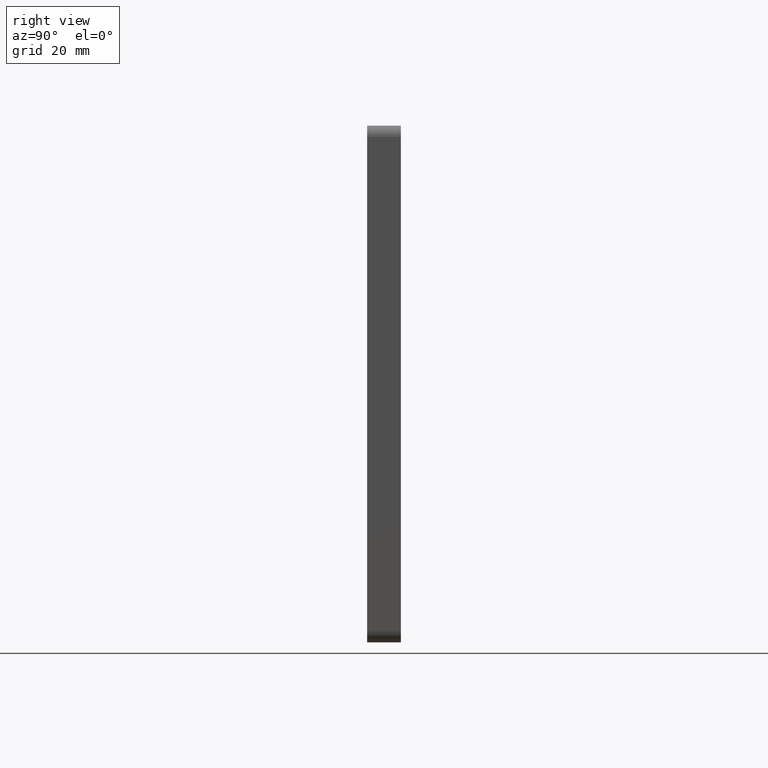
[diagram: clean part render]
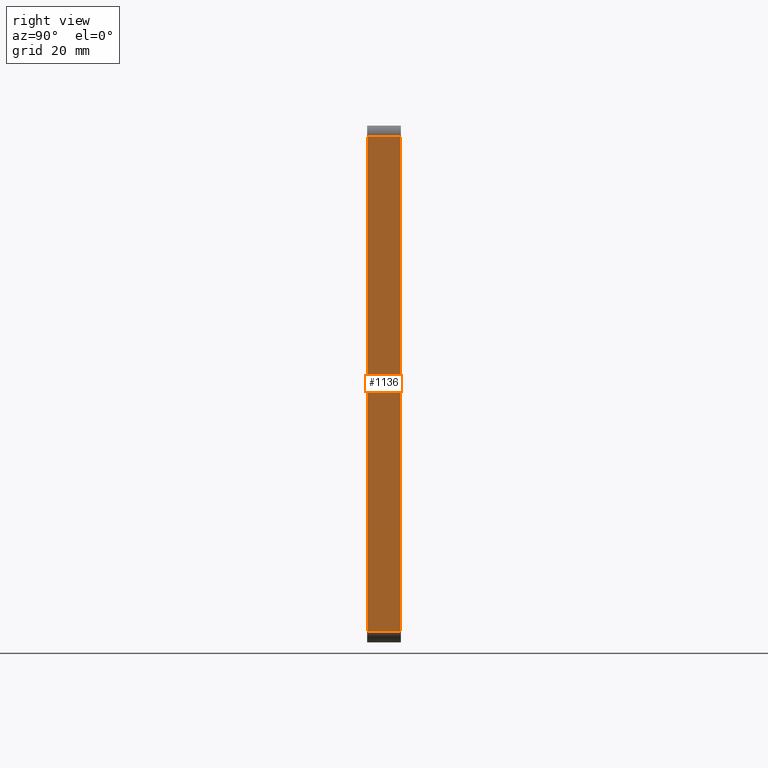
[diagram: same view with one face highlighted and labeled with its STEP entity id]
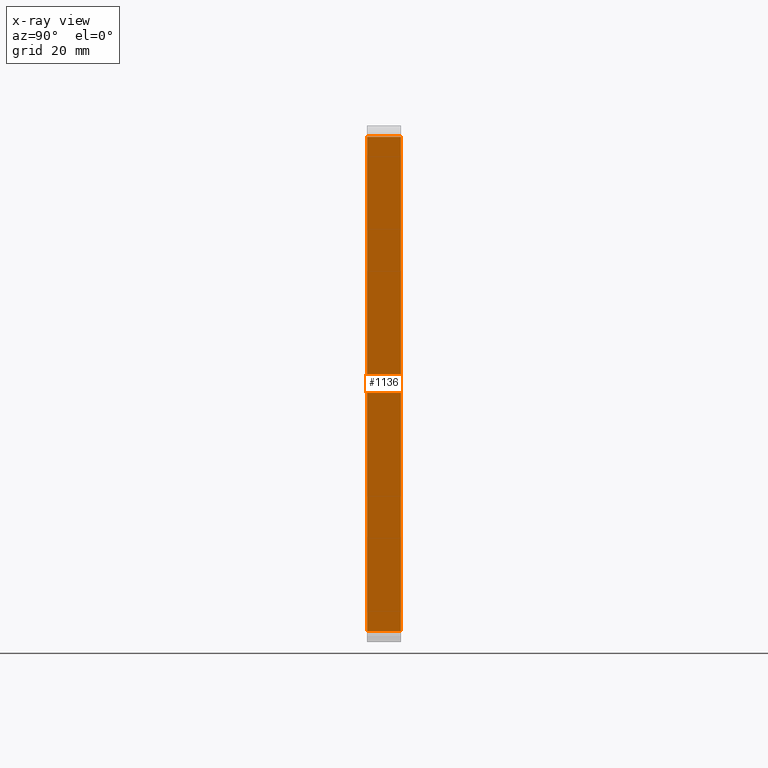
[diagram: x-ray of the same camera — body ghosted, the highlighted face saturated]
A machine part, right view. The second image highlights one B-rep face of the part: STEP entity #1136.
The next image is the same camera in x-ray: the body ghosted, the highlighted face saturated — about 0% of this face is hidden behind the body in this view.
In plain terms, the highlighted planar face has unit normal (-1, 0, 0).
Its self-contained STEP definition (entity closure, byte-faithful):
#119 = DIRECTION ( 'NONE',  ( -1.000000000000000000, 0.000000000000000000, 1.508455196501571183E-16 ) ) ;
#777 = ORIENTED_EDGE ( 'NONE', *, *, #10660, .T. ) ;
#1037 = ORIENTED_EDGE ( 'NONE', *, *, #9333, .T. ) ;
#1136 = ADVANCED_FACE ( 'NONE', ( #6863 ), #8628, .F. ) ;
#1150 = CARTESIAN_POINT ( 'NONE',  ( 45.99999999999998579, 0.000000000000000000, -46.00000000000000711 ) ) ;
#1419 = DIRECTION ( 'NONE',  ( 1.508455196501571183E-16, 0.000000000000000000, 1.000000000000000000 ) ) ;
#1449 = CARTESIAN_POINT ( 'NONE',  ( 46.00000000000000000, 6.000000000000000000, 43.99999999999999289 ) ) ;
#1700 = VERTEX_POINT ( 'NONE', #8304 ) ;
#2039 = EDGE_CURVE ( 'NONE', #7940, #7153, #11444, .T. ) ;
#2059 = DIRECTION ( 'NONE',  ( -0.000000000000000000, 1.000000000000000000, -0.000000000000000000 ) ) ;
#2202 = DIRECTION ( 'NONE',  ( 0.000000000000000000, -1.000000000000000000, 0.000000000000000000 ) ) ;
#2756 = VECTOR ( 'NONE', #2059, 1000.000000000000000 ) ;
#3144 = CARTESIAN_POINT ( 'NONE',  ( 45.99999999999998579, 6.000000000000000000, -44.00000000000000711 ) ) ;
#3957 = CARTESIAN_POINT ( 'NONE',  ( 45.99999999999998579, 6.000000000000000000, -46.00000000000000711 ) ) ;
#4412 = AXIS2_PLACEMENT_3D ( 'NONE', #3957, #119, #1419 ) ;
#4710 = VECTOR ( 'NONE', #9739, 1000.000000000000000 ) ;
#5124 = EDGE_CURVE ( 'NONE', #12992, #7153, #6008, .T. ) ;
#5286 = ORIENTED_EDGE ( 'NONE', *, *, #2039, .F. ) ;
#5689 = VECTOR ( 'NONE', #14288, 1000.000000000000000 ) ;
#5986 = CARTESIAN_POINT ( 'NONE',  ( 45.99999999999998579, 6.000000000000000000, -44.00000000000000711 ) ) ;
#6008 = LINE ( 'NONE', #3144, #2756 ) ;
#6863 = FACE_OUTER_BOUND ( 'NONE', #8808, .T. ) ;
#7009 = CARTESIAN_POINT ( 'NONE',  ( 45.99999999999998579, 6.000000000000000000, -46.00000000000000711 ) ) ;
#7153 = VERTEX_POINT ( 'NONE', #5986 ) ;
#7658 = ORIENTED_EDGE ( 'NONE', *, *, #5124, .T. ) ;
#7940 = VERTEX_POINT ( 'NONE', #1449 ) ;
#8304 = CARTESIAN_POINT ( 'NONE',  ( 46.00000000000000000, 0.000000000000000000, 43.99999999999999289 ) ) ;
#8628 = PLANE ( 'NONE',  #4412 ) ;
#8808 = EDGE_LOOP ( 'NONE', ( #777, #7658, #5286, #1037 ) ) ;
#9333 = EDGE_CURVE ( 'NONE', #7940, #1700, #11713, .T. ) ;
#9739 = DIRECTION ( 'NONE',  ( -1.508455196501571429E-16, -0.000000000000000000, -1.000000000000000000 ) ) ;
#10660 = EDGE_CURVE ( 'NONE', #1700, #12992, #15839, .T. ) ;
#11444 = LINE ( 'NONE', #7009, #5689 ) ;
#11713 = LINE ( 'NONE', #13204, #12445 ) ;
#12445 = VECTOR ( 'NONE', #2202, 1000.000000000000000 ) ;
#12992 = VERTEX_POINT ( 'NONE', #15054 ) ;
#13204 = CARTESIAN_POINT ( 'NONE',  ( 46.00000000000000000, 6.000000000000000000, 43.99999999999999289 ) ) ;
#14288 = DIRECTION ( 'NONE',  ( -1.508455196501571429E-16, -0.000000000000000000, -1.000000000000000000 ) ) ;
#15054 = CARTESIAN_POINT ( 'NONE',  ( 45.99999999999998579, 0.000000000000000000, -44.00000000000000711 ) ) ;
#15839 = LINE ( 'NONE', #1150, #4710 ) ;